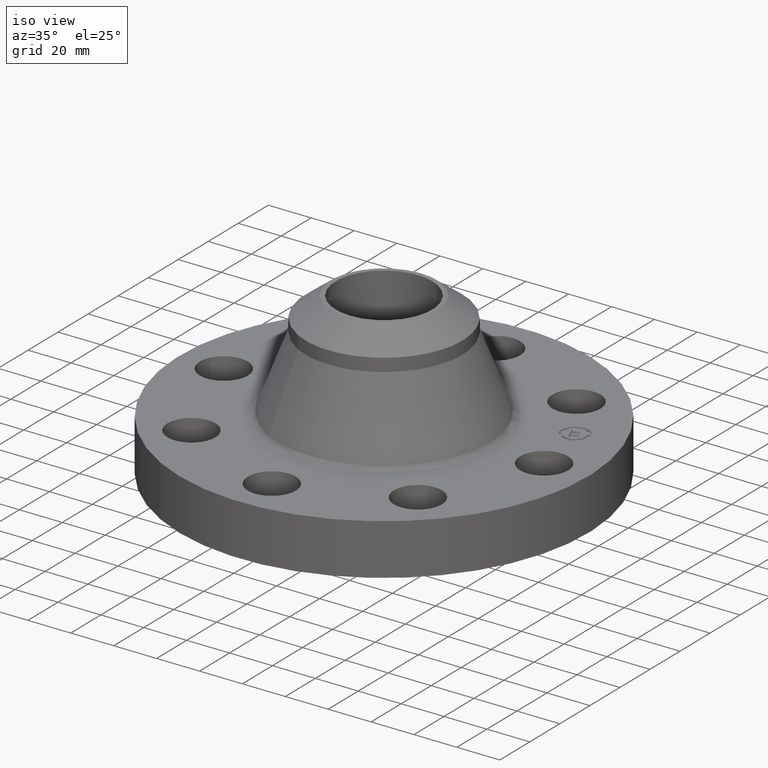
[diagram: clean part render]
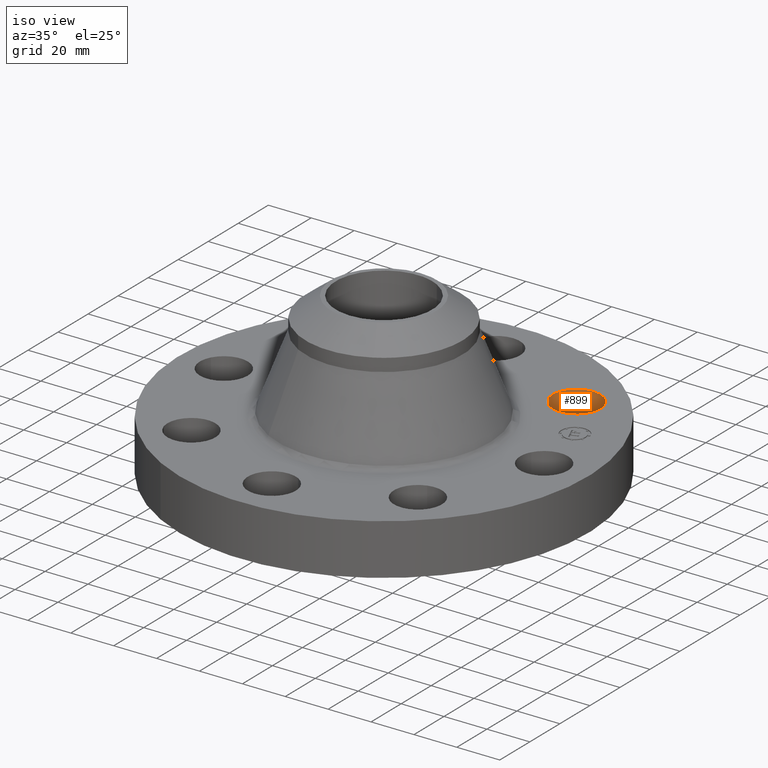
[diagram: same view with one face highlighted and labeled with its STEP entity id]
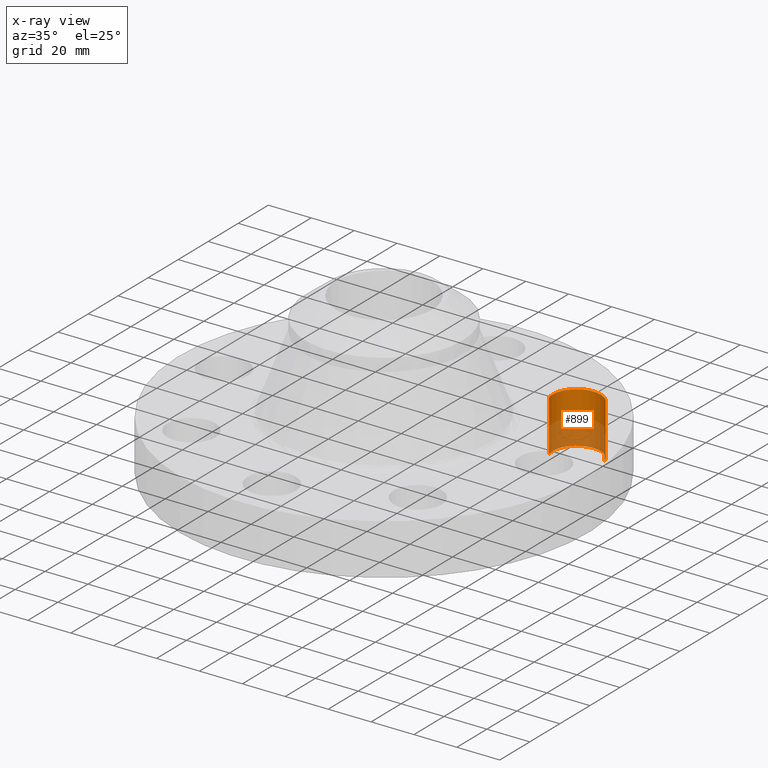
[diagram: x-ray of the same camera — body ghosted, the highlighted face saturated]
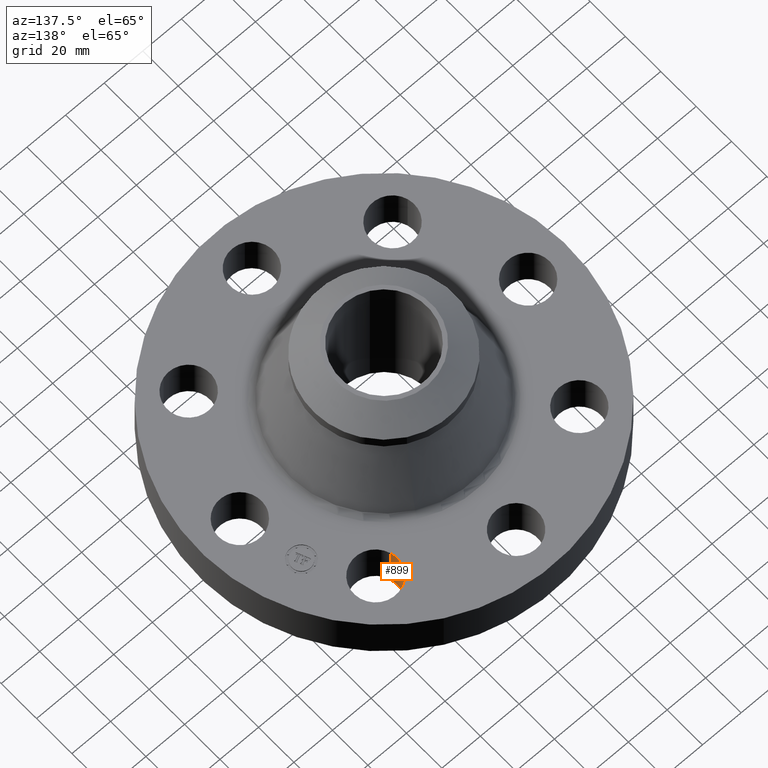
[diagram: same view with one face highlighted and labeled with its STEP entity id]
A machine part, iso view. The second image highlights one B-rep face of the part: STEP entity #899.
The next image is the same camera in x-ray: the body ghosted, the highlighted face saturated — about 49% of this face is hidden behind the body in this view.
A second angle (auxiliary view) of the same face is appended — the face is thin or edge-on in the first view.
In plain terms, the highlighted cylindrical surface (edge-blend (fillet) strip) has radius 11.176 mm, axis along (0, 0, -1).
Its self-contained STEP definition (entity closure, byte-faithful):
#291=AXIS2_PLACEMENT_3D('Circle Axis2P3D',#289,#290,$) ;
#479=AXIS2_PLACEMENT_3D('Circle Axis2P3D',#477,#478,$) ;
#881=AXIS2_PLACEMENT_3D('Cylinder Axis2P3D',#878,#879,#880) ;
#289=CARTESIAN_POINT('Axis2P3D Location',(2.07889393671,2.07889393665,0.)) ;
#293=CARTESIAN_POINT('Vertex',(1.65669209947,1.95501654302,0.)) ;
#295=CARTESIAN_POINT('Vertex',(2.5010957739,2.20277133042,0.)) ;
#472=CARTESIAN_POINT('Vertex',(2.5010957739,2.2027713304,0.940000000004)) ;
#474=CARTESIAN_POINT('Vertex',(1.6566920995,1.955016543,0.939999999989)) ;
#477=CARTESIAN_POINT('Axis2P3D Location',(2.07889393669,2.07889393671,0.940000000004)) ;
#878=CARTESIAN_POINT('Axis2P3D Location',(2.0788939367,2.0788939367,0.93606299213)) ;
#883=CARTESIAN_POINT('Line Origine',(1.6566920995,1.955016543,0.469999999993)) ;
#888=CARTESIAN_POINT('Line Origine',(2.5010957739,2.2027713304,0.469999999993)) ;
#290=DIRECTION('Axis2P3D Direction',(0.,0.,-0.0393700787402)) ;
#478=DIRECTION('Axis2P3D Direction',(0.,0.,-0.0393700787402)) ;
#879=DIRECTION('Axis2P3D Direction',(0.,0.,-0.0393700787402)) ;
#880=DIRECTION('Axis2P3D XDirection',(-0.0377775444876,-0.0110842335096,0.)) ;
#884=DIRECTION('Vector Direction',(0.,0.,-0.0393700787402)) ;
#889=DIRECTION('Vector Direction',(0.,0.,-0.0393700787402)) ;
#885=VECTOR('Line Direction',#884,0.0393700787402) ;
#890=VECTOR('Line Direction',#889,0.0393700787402) ;
#894=ORIENTED_EDGE('',*,*,#887,.F.) ;
#895=ORIENTED_EDGE('',*,*,#297,.T.) ;
#896=ORIENTED_EDGE('',*,*,#892,.T.) ;
#897=ORIENTED_EDGE('',*,*,#481,.F.) ;
#899=ADVANCED_FACE('PartBody',(#898),#882,.F.) ;
#292=CIRCLE('generated circle',#291,0.440000000019) ;
#480=CIRCLE('generated circle',#479,0.440000000019) ;
#882=CYLINDRICAL_SURFACE('generated cylinder',#881,0.440000000002) ;
#297=EDGE_CURVE('',#294,#296,#292,.T.) ;
#481=EDGE_CURVE('',#475,#473,#480,.T.) ;
#887=EDGE_CURVE('',#294,#475,#886,.F.) ;
#892=EDGE_CURVE('',#296,#473,#891,.F.) ;
#893=EDGE_LOOP('',(#894,#895,#896,#897)) ;
#898=FACE_OUTER_BOUND('',#893,.T.) ;
#886=LINE('Line',#883,#885) ;
#891=LINE('Line',#888,#890) ;
#294=VERTEX_POINT('',#293) ;
#296=VERTEX_POINT('',#295) ;
#473=VERTEX_POINT('',#472) ;
#475=VERTEX_POINT('',#474) ;